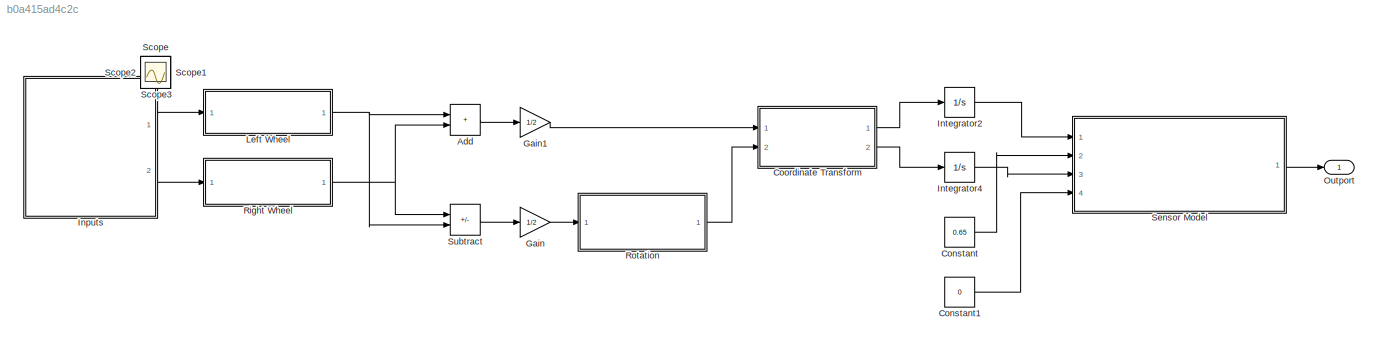
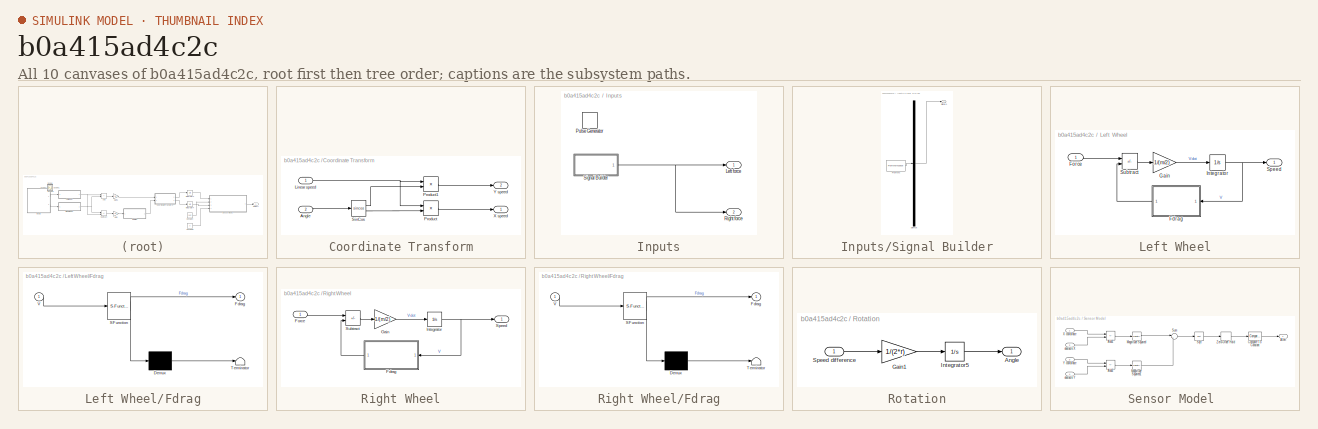
[diagram: thumbnail index - all 10 canvases of the model, root first then tree order]
MODEL slx_b0a415ad4c2c
KIND model
CONFIG AbsTol = auto
CONFIG EnableMultiTasking = off
CONFIG FixedStep = auto
CONFIG MaxStep = auto
CONFIG MinStep = auto
CONFIG PostLoadFcn = m=2.5;\nk_drag=30;\nr=0.15;\n
CONFIG RelTol = 1e-3
CONFIG SampleTimeConstraint = Unconstrained
CONFIG Solver = VariableStepAuto
CONFIG SolverName = VariableStepAuto
CONFIG StartTime = 0.0
CONFIG StopTime = 20
BLOCK [Sum] Add
  IconShape = rectangular
  Ports = [2, 1]
BLOCK [Constant] Constant
  Value = 0.65
BLOCK [Constant] Constant1
  Value = 0
BLOCK [SubSystem] Coordinate Transform
  Ports = [2, 2]
  RequestExecContextInheritance = off
BLOCK [Inport] Coordinate Transform/Angle
  Port = 2
BLOCK [Inport] Coordinate Transform/Linear speed
BLOCK [Product] Coordinate Transform/Product
  Ports = [2, 1]
BLOCK [Product] Coordinate Transform/Product1
  Ports = [2, 1]
BLOCK [Trigonometry] Coordinate Transform/SinCos
  Operator = sincos
  Ports = [1, 2]
BLOCK [Outport] Coordinate Transform/X speed
  VectorParamsAs1DForOutWhenUnconnected = off
BLOCK [Outport] Coordinate Transform/Y speed
  Port = 2
  VectorParamsAs1DForOutWhenUnconnected = off
BLOCK [Gain] Gain
  Gain = 1/2
BLOCK [Gain] Gain1
  Gain = 1/2
BLOCK [SubSystem] Inputs
  Ports = [0, 2]
  RequestExecContextInheritance = off
BLOCK [Outport] Inputs/Left force
  VectorParamsAs1DForOutWhenUnconnected = off
BLOCK [DiscretePulseGenerator] Inputs/Pulse Generator
  Commented = on
  Period = 20
  Ports = [0, 1]
  PulseType = Time based
  PulseWidth = 15
BLOCK [Outport] Inputs/Right force
  Port = 2
  VectorParamsAs1DForOutWhenUnconnected = off
BLOCK [SubSystem] Inputs/Signal Builder
  ClipboardFcn = sigbuilder_block('clipboard');
  CloseFcn = sigbuilder_block('close');
  ContinueFcn = sigbuilder_block('continue');
  CopyFcn = sigbuilder_block('copy');
  DeleteFcn = sigbuilder_block('delete');
  LoadFcn = sigbuilder_block('load');
  MaskHideContents = on
  ModelCloseFcn = sigbuilder_block('modelClose');
  NameChangeFcn = sigbuilder_block('namechange');
  OpenFcn = sigbuilder_block('open',[444 145.8 550.8 400.2 ]);
  PauseFcn = sigbuilder_block('pause');
  Ports = [0, 1]
  PreSaveFcn = sigbuilder_block('preSave');
  RequestExecContextInheritance = off
  StartFcn = sigbuilder_block('start');
  StopFcn = sigbuilder_block('stop');
  Tag = STV Subsys
BLOCK [Demux] Inputs/Signal Builder/Demux
  DisplayOption = none
  Outputs = 1
  Ports = [1, 1]
  Tag = STV Demux
BLOCK [FromWorkspace] Inputs/Signal Builder/FromWs
  Tag = STV FromWs
  VariableName = tuvar
BLOCK [Outport] Inputs/Signal Builder/Signal 1
  Tag = STV Outport
BLOCK [Integrator] Integrator2
  Ports = [1, 1]
BLOCK [Integrator] Integrator4
  Ports = [1, 1]
BLOCK [SubSystem] Left Wheel
  Ports = [1, 1]
  RequestExecContextInheritance = off
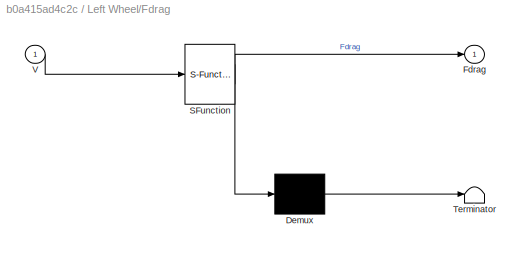
BLOCK [SubSystem] Left Wheel/Fdrag
  ErrorFcn = Stateflow.Translate.translate
  PermitHierarchicalResolution = ExplicitOnly
  Ports = [1, 1]
  RequestExecContextInheritance = off
  SFBlockType = MATLAB Function
  TreatAsAtomicUnit = on
BLOCK [Demux] Left Wheel/Fdrag/ Demux 
  Outputs = 1
  Ports = [1, 1]
BLOCK [S-Function] Left Wheel/Fdrag/ SFunction 
  EnableBusSupport = on
  FunctionName = sf_sfun
  Parameters = k_drag
  PortCounts = [1 2]
  Ports = [1, 2]
  SFcnIsStateOwnerBlock = off
  SFunctionDeploymentMode = off
  Tag = Stateflow S-Function 1
BLOCK [Terminator] Left Wheel/Fdrag/ Terminator 
BLOCK [Outport] Left Wheel/Fdrag/Fdrag
  VectorParamsAs1DForOutWhenUnconnected = off
BLOCK [Inport] Left Wheel/Fdrag/V
BLOCK [Inport] Left Wheel/Force
BLOCK [Gain] Left Wheel/Gain
  Gain = 1/(m/2)
BLOCK [Integrator] Left Wheel/Integrator
  Ports = [1, 1]
BLOCK [Outport] Left Wheel/Speed
  VectorParamsAs1DForOutWhenUnconnected = off
BLOCK [Sum] Left Wheel/Subtract
  IconShape = rectangular
  Inputs = +-
  Ports = [2, 1]
BLOCK [Outport] Outport
BLOCK [SubSystem] Right Wheel
  Ports = [1, 1]
  RequestExecContextInheritance = off
BLOCK [SubSystem] Right Wheel/Fdrag
  ErrorFcn = Stateflow.Translate.translate
  PermitHierarchicalResolution = ExplicitOnly
  Ports = [1, 1]
  RequestExecContextInheritance = off
  SFBlockType = MATLAB Function
  TreatAsAtomicUnit = on
BLOCK [Demux] Right Wheel/Fdrag/ Demux 
  Outputs = 1
  Ports = [1, 1]
BLOCK [S-Function] Right Wheel/Fdrag/ SFunction 
  EnableBusSupport = on
  FunctionName = sf_sfun
  Parameters = k_drag
  PortCounts = [1 2]
  Ports = [1, 2]
  SFcnIsStateOwnerBlock = off
  SFunctionDeploymentMode = off
  Tag = Stateflow S-Function 2
BLOCK [Terminator] Right Wheel/Fdrag/ Terminator 
BLOCK [Outport] Right Wheel/Fdrag/Fdrag
  VectorParamsAs1DForOutWhenUnconnected = off
BLOCK [Inport] Right Wheel/Fdrag/V
BLOCK [Inport] Right Wheel/Force
BLOCK [Gain] Right Wheel/Gain
  Gain = 1/(m/2)
BLOCK [Integrator] Right Wheel/Integrator
  Ports = [1, 1]
BLOCK [Outport] Right Wheel/Speed
  VectorParamsAs1DForOutWhenUnconnected = off
BLOCK [Sum] Right Wheel/Subtract
  IconShape = rectangular
  Inputs = +-
  Ports = [2, 1]
BLOCK [SubSystem] Rotation
  Ports = [1, 1]
  RequestExecContextInheritance = off
BLOCK [Outport] Rotation/Angle
  VectorParamsAs1DForOutWhenUnconnected = off
BLOCK [Gain] Rotation/Gain1
  Gain = 1/(2*r)
BLOCK [Integrator] Rotation/Integrator5
  Ports = [1, 1]
BLOCK [Inport] Rotation/Speed difference
BLOCK [Scope] Scope
  Floating = off
  IOType = viewer
  NumInputPorts = 1
  Ports = []
  ScopeSpecificationString = Simulink.scopes.TimeScopeBlockCfg('CurrentConfiguration', extmgr.ConfigurationSet(extmgr.Configuration('Core','General UI',true),extmgr.Configuration('Core','Source UI',true),extmgr.Configuration('Sources','WiredSimulink',true),extmgr.Configuration('Visuals','Time Domain',true,'SerializedDisplays',{struct('MinYLimReal','-0.0626','MaxYLimReal','0.56341','YLabelReal','','MinYLimMag','0.00000','MaxYL...<+1327ch>
BLOCK [Scope] Scope1
  Floating = off
  IOType = viewer
  NumInputPorts = 1
  Ports = []
  ScopeSpecificationString = Simulink.scopes.TimeScopeBlockCfg('CurrentConfiguration', extmgr.ConfigurationSet(extmgr.Configuration('Core','General UI',true),extmgr.Configuration('Core','Source UI',true),extmgr.Configuration('Sources','WiredSimulink',true,'DataLoggingVariableName','ScopeData1'),extmgr.Configuration('Visuals','Time Domain',true,'SerializedDisplays',{struct('MinYLimReal','-1.00000','MaxYLimReal','1.00000','YLab...<+1401ch>
BLOCK [Scope] Scope2
  Floating = off
  IOType = viewer
  NumInputPorts = 1
  Ports = []
  ScopeSpecificationString = Simulink.scopes.TimeScopeBlockCfg('CurrentConfiguration', extmgr.ConfigurationSet(extmgr.Configuration('Core','General UI',true),extmgr.Configuration('Core','Source UI',true),extmgr.Configuration('Sources','WiredSimulink',true,'DataLoggingVariableName','ScopeData1'),extmgr.Configuration('Visuals','Time Domain',true,'SerializedDisplays',{struct('MinYLimReal','-0.02282','MaxYLimReal','0.20537','YLab...<+1399ch>
BLOCK [Scope] Scope3
  Floating = off
  IOType = viewer
  NumInputPorts = 1
  Ports = []
  ScopeSpecificationString = Simulink.scopes.TimeScopeBlockCfg('CurrentConfiguration', extmgr.ConfigurationSet(extmgr.Configuration('Core','General UI',true),extmgr.Configuration('Core','Source UI',true),extmgr.Configuration('Sources','WiredSimulink',true,'DataLoggingVariableName','ScopeData2'),extmgr.Configuration('Visuals','Time Domain',true,'SerializedDisplays',{struct('MinYLimReal','-0.02282','MaxYLimReal','0.20537','YLab...<+1401ch>
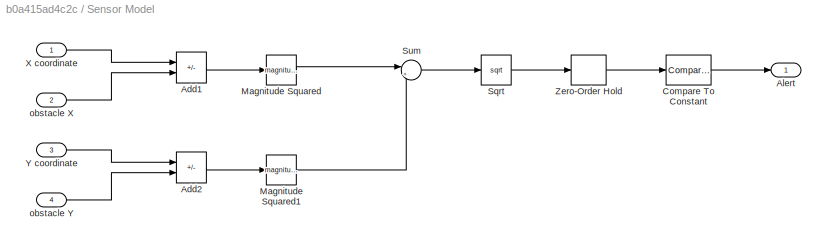
BLOCK [SubSystem] Sensor Model 
  Ports = [4, 1]
  RequestExecContextInheritance = off
BLOCK [Sum] Sensor Model /Add1
  IconShape = rectangular
  Inputs = +-
  Ports = [2, 1]
BLOCK [Sum] Sensor Model /Add2
  IconShape = rectangular
  Inputs = +-
  Ports = [2, 1]
BLOCK [Outport] Sensor Model /Alert
BLOCK [Reference] Sensor Model /Compare To Constant  REF=simulink/Logic and Bit
Operations/Compare
To Constant
  Ports = [1, 1]
  SourceBlock = simulink/Logic and Bit\nOperations/Compare\nTo Constant
  SourceProductBaseCode = SL
  SourceType = Compare To Constant
BLOCK [Math] Sensor Model /Magnitude Squared
  Operator = magnitude^2
  Ports = [1, 1]
BLOCK [Math] Sensor Model /Magnitude Squared1
  Operator = magnitude^2
  Ports = [1, 1]
BLOCK [Sqrt] Sensor Model /Sqrt
BLOCK [Sum] Sensor Model /Sum
  Inputs = |++
  Ports = [2, 1]
BLOCK [Inport] Sensor Model /X coordinate
BLOCK [Inport] Sensor Model /Y coordinate 
  Port = 3
BLOCK [ZeroOrderHold] Sensor Model /Zero-Order Hold
  SampleTime = 0.25
BLOCK [Inport] Sensor Model /obstacle X
  Port = 2
BLOCK [Inport] Sensor Model /obstacle Y
  Port = 4
BLOCK [Sum] Subtract
  IconShape = rectangular
  Inputs = +-
  Ports = [2, 1]
LINE Add:1 -> Gain1:1
LINE Constant1:1 -> Sensor Model :4
LINE Constant:1 -> Sensor Model :2
LINE Coordinate Transform/Angle:1 -> Coordinate Transform/SinCos:1
NET Coordinate Transform/Linear speed:1 -> Coordinate Transform/Product1:1, Coordinate Transform/Product:1
LINE Coordinate Transform/Product1:1 -> Coordinate Transform/Y speed:1
LINE Coordinate Transform/Product:1 -> Coordinate Transform/X speed:1
LINE Coordinate Transform/SinCos:1 -> Coordinate Transform/Product1:2
LINE Coordinate Transform/SinCos:2 -> Coordinate Transform/Product:2
LINE Coordinate Transform:1 -> Integrator2:1
LINE Coordinate Transform:2 -> Integrator4:1
LINE Gain1:1 -> Coordinate Transform:1
LINE Gain:1 -> Rotation:1
NET Inputs/Signal Builder:1 -> Inputs/Left force:1, Inputs/Right force:1
LINE Inputs:1 -> Left Wheel:1
LINE Inputs:2 -> Right Wheel:1
LINE Integrator2:1 -> Sensor Model :1
LINE Integrator4:1 -> Sensor Model :3
LINE Left Wheel/Fdrag:1 -> Left Wheel/Subtract:2
LINE Left Wheel/Force:1 -> Left Wheel/Subtract:1
LINE Left Wheel/Gain:1 -> Left Wheel/Integrator:1
NET Left Wheel/Integrator:1 -> Left Wheel/Fdrag:1, Left Wheel/Speed:1
LINE Left Wheel/Subtract:1 -> Left Wheel/Gain:1
NET Left Wheel:1 -> Add:1, Subtract:2
LINE Right Wheel/Fdrag:1 -> Right Wheel/Subtract:2
LINE Right Wheel/Force:1 -> Right Wheel/Subtract:1
LINE Right Wheel/Gain:1 -> Right Wheel/Integrator:1
NET Right Wheel/Integrator:1 -> Right Wheel/Fdrag:1, Right Wheel/Speed:1
LINE Right Wheel/Subtract:1 -> Right Wheel/Gain:1
NET Right Wheel:1 -> Add:2, Subtract:1
LINE Rotation/Gain1:1 -> Rotation/Integrator5:1
LINE Rotation/Integrator5:1 -> Rotation/Angle:1
LINE Rotation/Speed difference:1 -> Rotation/Gain1:1
LINE Rotation:1 -> Coordinate Transform:2
LINE Sensor Model /Add1:1 -> Sensor Model /Magnitude Squared:1
LINE Sensor Model /Add2:1 -> Sensor Model /Magnitude Squared1:1
LINE Sensor Model /Compare To Constant:1 -> Sensor Model /Alert:1
LINE Sensor Model /Magnitude Squared1:1 -> Sensor Model /Sum:2
LINE Sensor Model /Magnitude Squared:1 -> Sensor Model /Sum:1
LINE Sensor Model /Sqrt:1 -> Sensor Model /Zero-Order Hold:1
LINE Sensor Model /Sum:1 -> Sensor Model /Sqrt:1
LINE Sensor Model /X coordinate:1 -> Sensor Model /Add1:1
LINE Sensor Model /Y coordinate :1 -> Sensor Model /Add2:1
LINE Sensor Model /Zero-Order Hold:1 -> Sensor Model /Compare To Constant:1
LINE Sensor Model /obstacle X:1 -> Sensor Model /Add1:2
LINE Sensor Model /obstacle Y:1 -> Sensor Model /Add2:2
LINE Sensor Model :1 -> Outport:1
LINE Subtract:1 -> Gain:1
note: NET lines group one-source signal fan-out (src -> all destinations, sorted); 1:1 wires keep LINE
CHART Right Wheel/Fdrag states=1 transitions=1
  STATE_LABEL 'eML_blk_kernel()'
  STATE_LABEL 'SCRIPT:\nfunction Fdrag = get_fdrag(V,k_drag)\n\nFdrag = k_drag*V*abs(V);\n'
CHART Left Wheel/Fdrag states=1 transitions=1
  STATE_LABEL 'eML_blk_kernel()'
  STATE_LABEL 'SCRIPT:\nfunction Fdrag = get_fdrag(V,k_drag)\n\nFdrag = k_drag*V*abs(V);\n'
CHART  states=0 transitions=0
CHART  states=0 transitions=0
